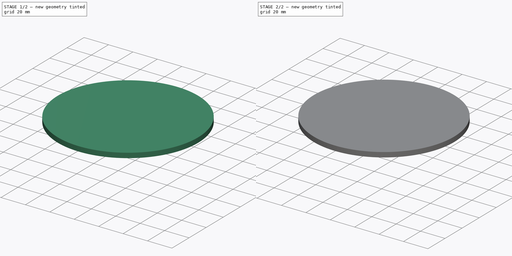
[diagram: build sequence overview — one tinted view per stage of 2, left to right]
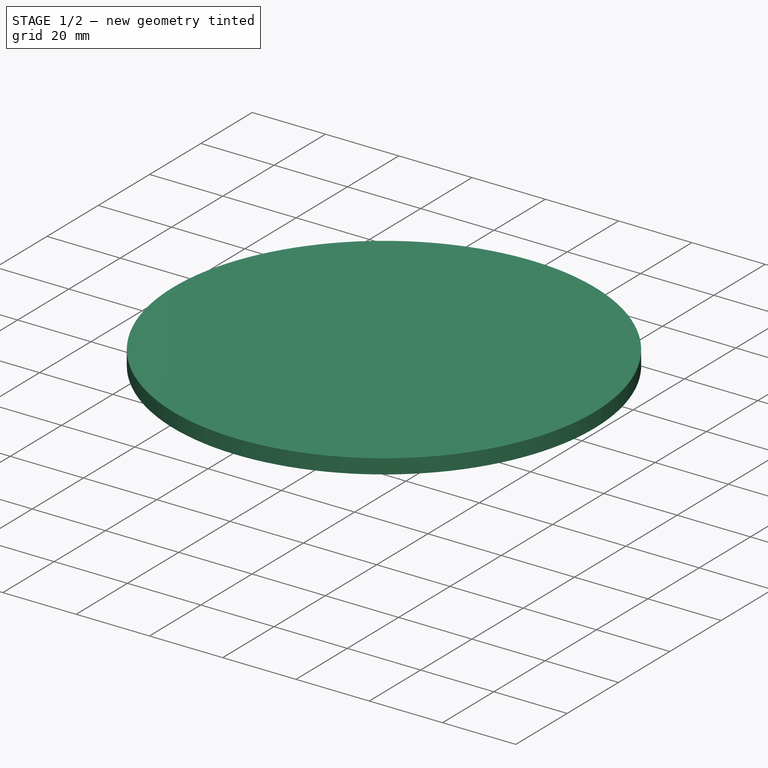
[diagram: stage 1 of 2 — iso view after this stage's code; geometry added in this stage tinted green]
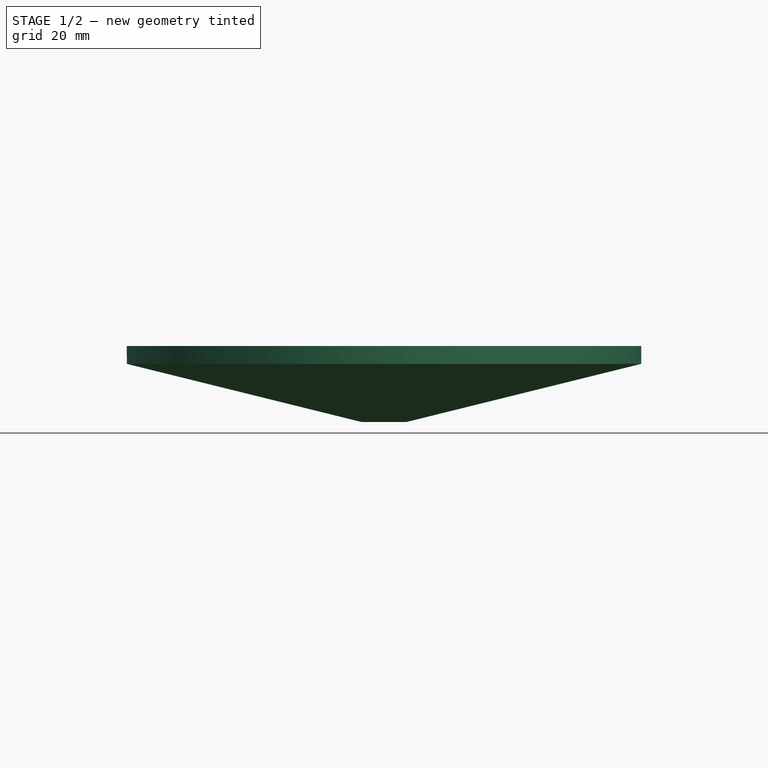
[diagram: stage 1 of 2 — front view after this stage's code; geometry added in this stage tinted green]
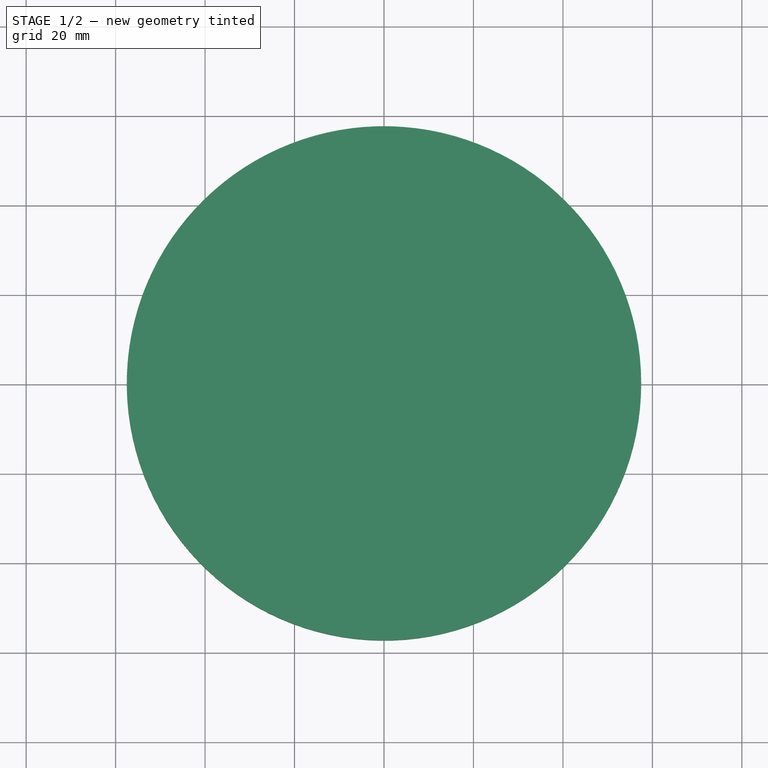
[diagram: stage 1 of 2 — top view after this stage's code; geometry added in this stage tinted green]
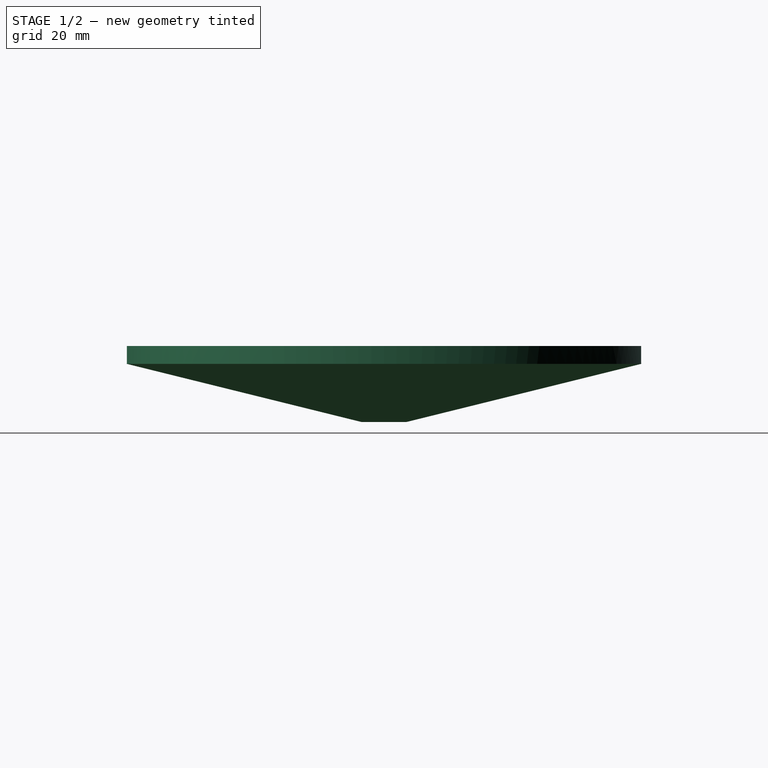
[diagram: stage 1 of 2 — right view after this stage's code; geometry added in this stage tinted green]
FCSTD DOCUMENT  (FreeCAD 1.0R39109 (Git))
Label: platform
License: All rights reserved
LicenseURL: https://en.wikipedia.org/wiki/All_rights_reserved
objects: Sketcher::SketchObject×3, PartDesign::Plane×2, PartDesign::Pad×1, PartDesign::AdditiveLoft×1, PartDesign::Revolution×1, PartDesign::Body×1
note: 18 computed .brp shape members not serialized (recipe doc carries the construction recipe); baked Part::Feature solids carry a one-line shape summary decoded from their .brp

FEATURE [Sketcher::SketchObject] Sketch
  ArcFitTolerance = 1e-06
  AttachmentSupport = -> [XY_Plane]
  FullyConstrained = true
  MakeInternals = false
  MapMode = 5
  sketch-geometry (1):
    g0: Circle CenterX=0 CenterY=0 CenterZ=0 NormalX=0 NormalY=0 NormalZ=1 AngleXU=0 Radius=57.5
  constraints (2):
    c: Coincident(g0,g-1)
    c: Diameter(g0) = 115
FEATURE [PartDesign::Pad] Pad
  Direction = (0,0,1)
  Length = 4
  Length2 = 10
  Profile = -> Sketch
  ReferenceAxis = -> Sketch [N_Axis]
  Refine = true
  Suppressed = false
  Type = 0
FEATURE [PartDesign::Plane] DatumPlane
  AttachmentOffset = pos=(0,0,-13) rot=(0,0,1;0rad)
  AttachmentSupport = -> [Pad]
  Length = 60
  MapMode = 11
  Placement = pos=(0,0,-13) rot=(0,0,1;1.5708rad)
  ResizeMode = 0
  Width = 60
FEATURE [Sketcher::SketchObject] Sketch001
  ArcFitTolerance = 1e-06
  AttachmentSupport = -> [DatumPlane]
  FullyConstrained = true
  MakeInternals = false
  MapMode = 5
  Placement = pos=(0,0,-13) rot=(0,0,1;1.5708rad)
  sketch-geometry (1):
    g0: Circle CenterX=0 CenterY=0 CenterZ=0 NormalX=0 NormalY=0 NormalZ=1 AngleXU=0 Radius=5
  constraints (2):
    c: Coincident(g0,g-1)
    c: Diameter(g0) = 10
FEATURE [PartDesign::AdditiveLoft] AdditiveLoft
  BaseFeature = -> Pad
  Closed = false
  Profile = -> Pad [Edge2]
  Refine = true
  Ruled = false
  Sections = -> [Sketch001]
  Suppressed = false
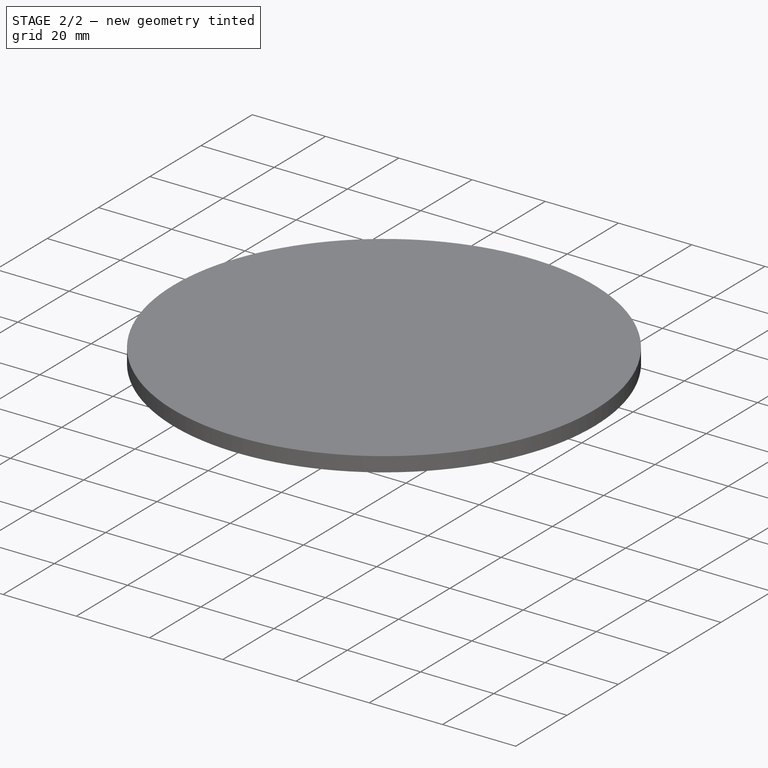
[diagram: stage 2 of 2 — iso view after this stage's code; geometry added in this stage tinted green]
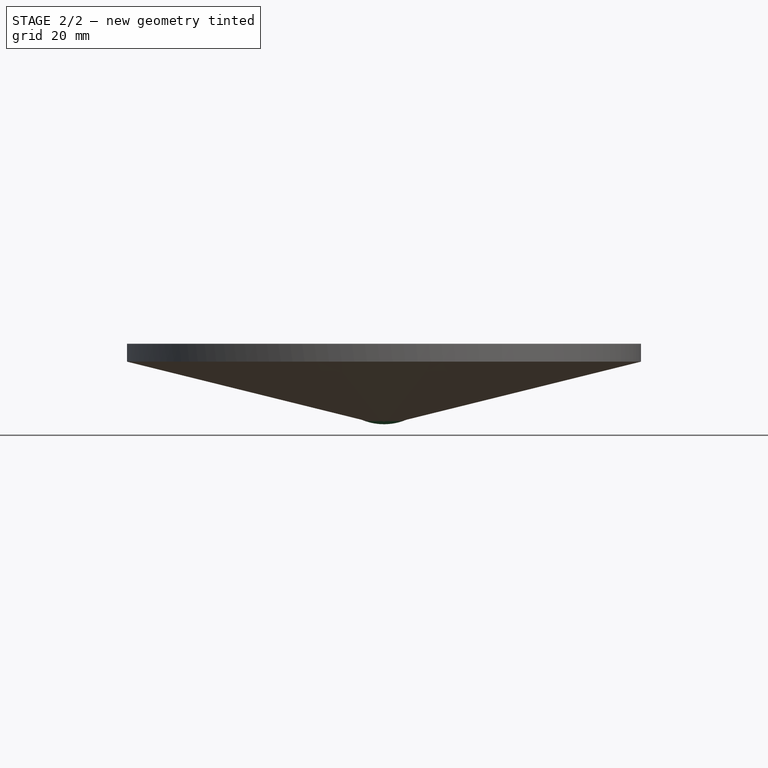
[diagram: stage 2 of 2 — front view after this stage's code; geometry added in this stage tinted green]
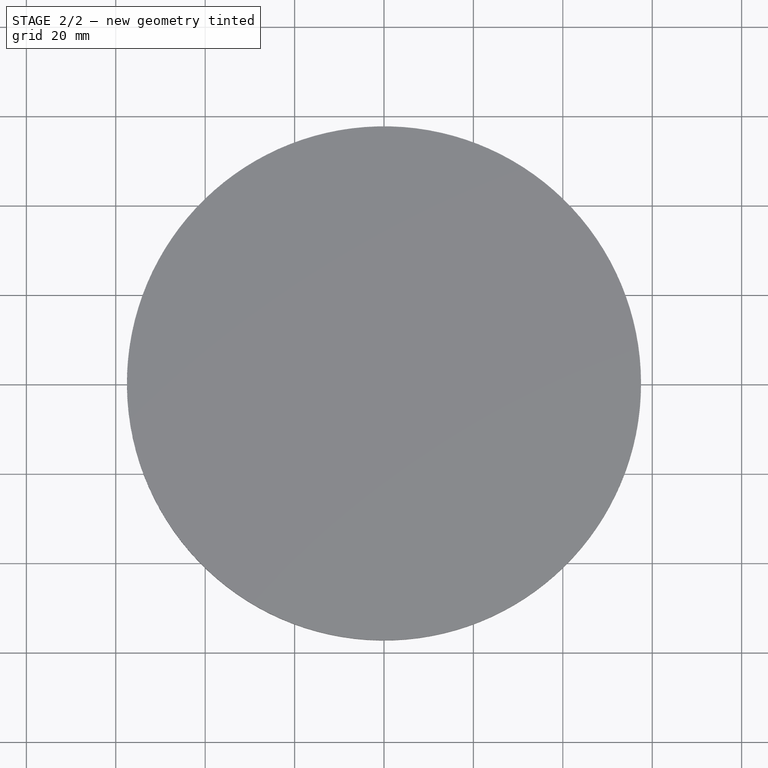
[diagram: stage 2 of 2 — top view after this stage's code; geometry added in this stage tinted green]
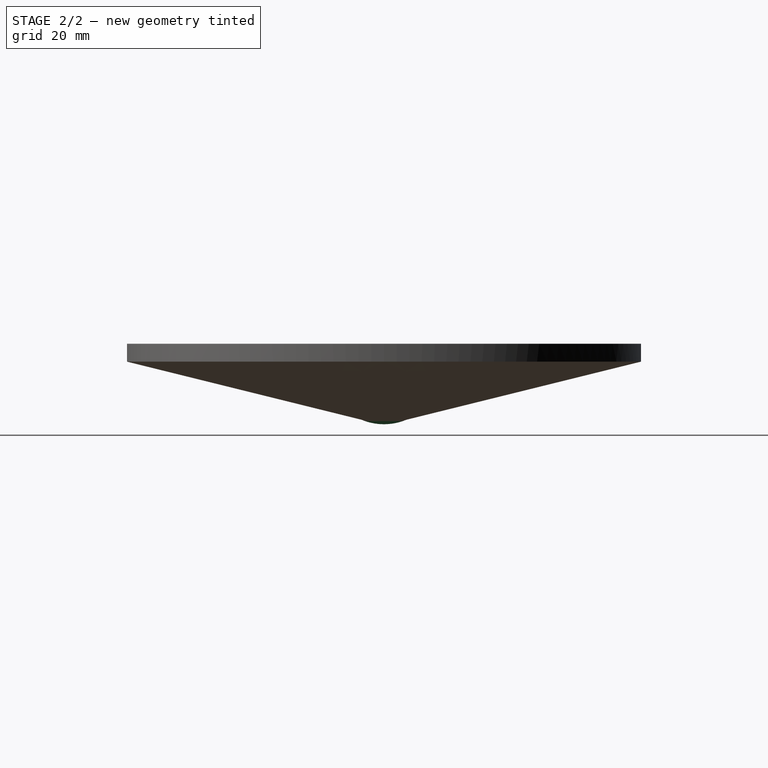
[diagram: stage 2 of 2 — right view after this stage's code; geometry added in this stage tinted green]
FEATURE [PartDesign::Plane] DatumPlane001
  AttachmentOffset = pos=(0,0,0) rot=(0,1,0;1.5708rad)
  AttachmentSupport = -> [AdditiveLoft]
  Length = 60
  MapMode = 5
  Placement = pos=(0,0,-13) rot=(0.707107,0,0.707107;3.14159rad)
  ResizeMode = 0
  Width = 60
FEATURE [Sketcher::SketchObject] Sketch002
  ArcFitTolerance = 1e-06
  AttachmentSupport = -> [DatumPlane001]
  ExternalGeometry = -> [AdditiveLoft]
  FullyConstrained = true
  MakeInternals = false
  MapMode = 5
  Placement = pos=(0,0,-13) rot=(0.707107,0,0.707107;3.14159rad)
  sketch-geometry (3):
    g0: LineSegment StartX=1.8e-15 StartY=5 StartZ=0 EndX=0 EndY=0 EndZ=0
    g1: ArcOfCircle CenterX=12 CenterY=0 CenterZ=0 NormalX=0 NormalY=0 NormalZ=1 AngleXU=0 Radius=13 StartAngle=2.7468 EndAngle=3.14159
    g2: LineSegment StartX=-1 StartY=1.6e-15 StartZ=0 EndX=0 EndY=0 EndZ=0
  constraints (8):
    c: Coincident(g1,g0)
    c: Coincident(g0,g-3)
    c: PointOnObject(g1,g-1)
    c: Coincident(g2,g1)
    c: Coincident(g2,g-1)
    c: Coincident(g0,g2)
    c: DistanceX(g2,g2) = 1
    c: PointOnObject(g1,g-1)
FEATURE [PartDesign::Revolution] Revolution
  Angle = 360
  Angle2 = 60
  Axis = (2e-16,0,1)
  Base = (0,0,-13)
  BaseFeature = -> AdditiveLoft
  Profile = -> Sketch002
  ReferenceAxis = -> Sketch002 [H_Axis]
  Refine = true
  Suppressed = false
  Type = 0
FEATURE [PartDesign::Body] Body
  AllowCompound = false
  Group = -> [Sketch,Pad,DatumPlane,Sketch001,AdditiveLoft,DatumPlane001,Sketch002,Revolution]
  Origin = -> Origin
  Tip = -> Revolution
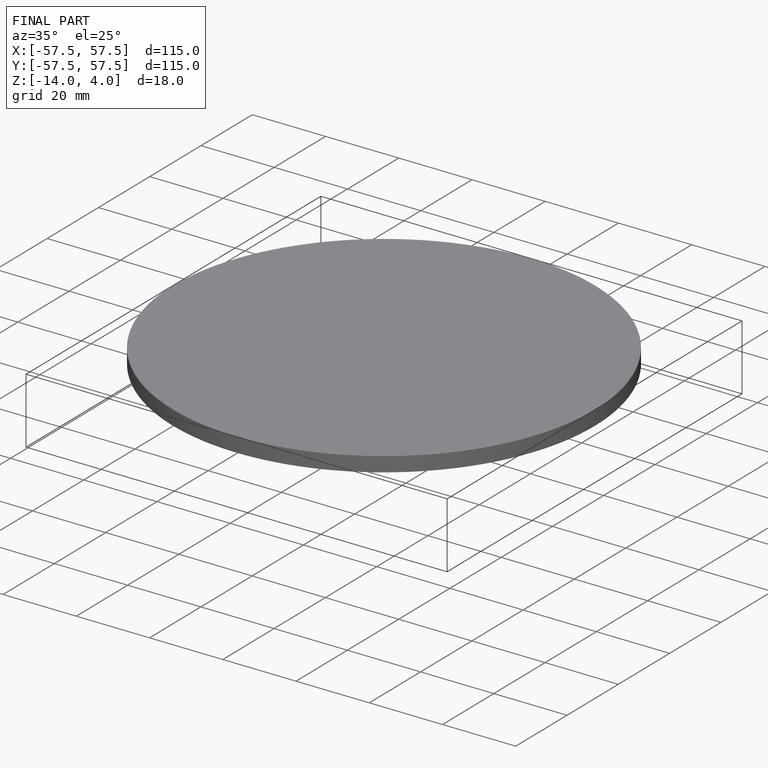
[diagram: finished part — iso view with bounding-box wireframe]
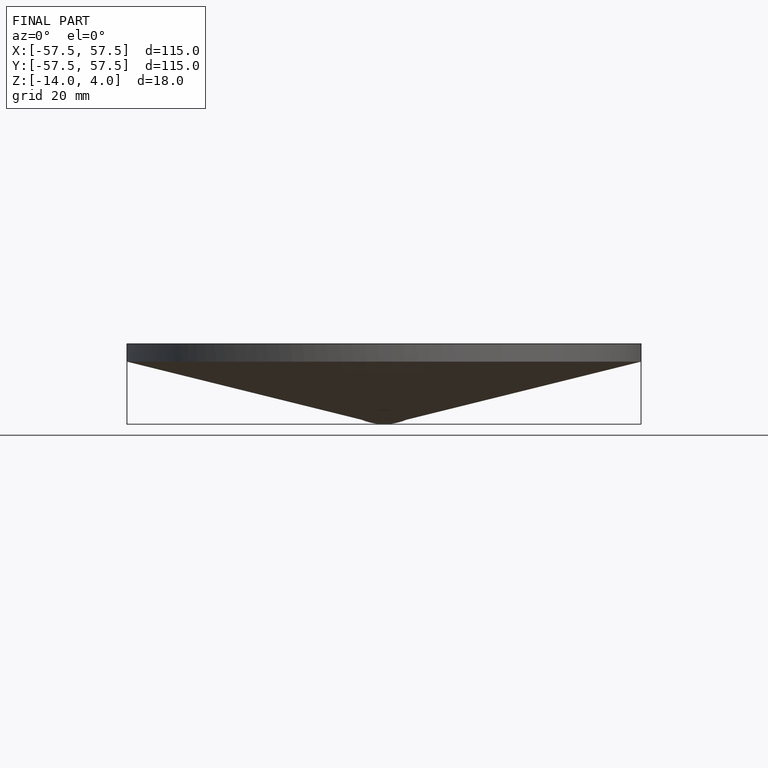
[diagram: finished part — front view with bounding-box wireframe]
